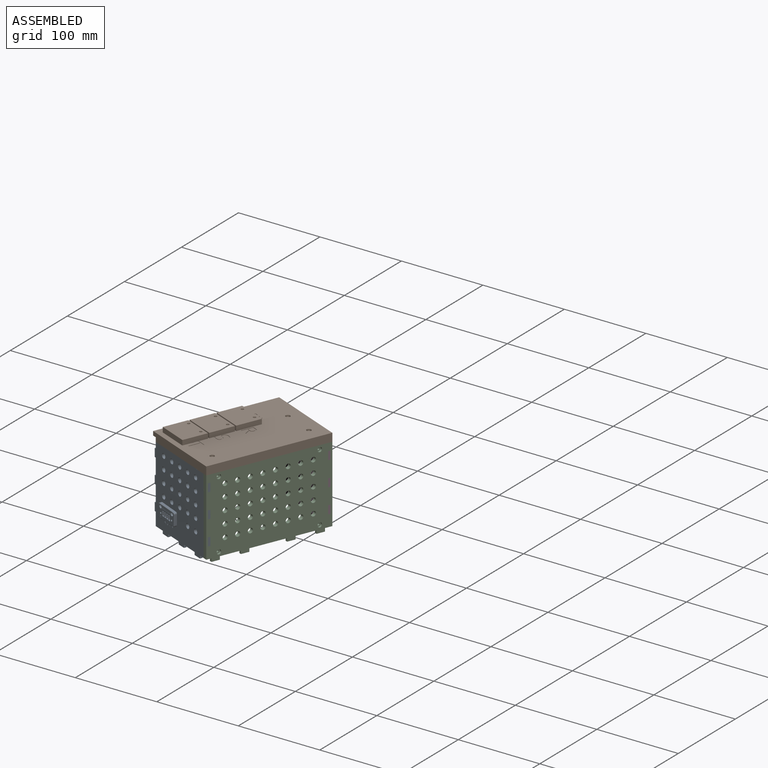
[diagram: assembled view]
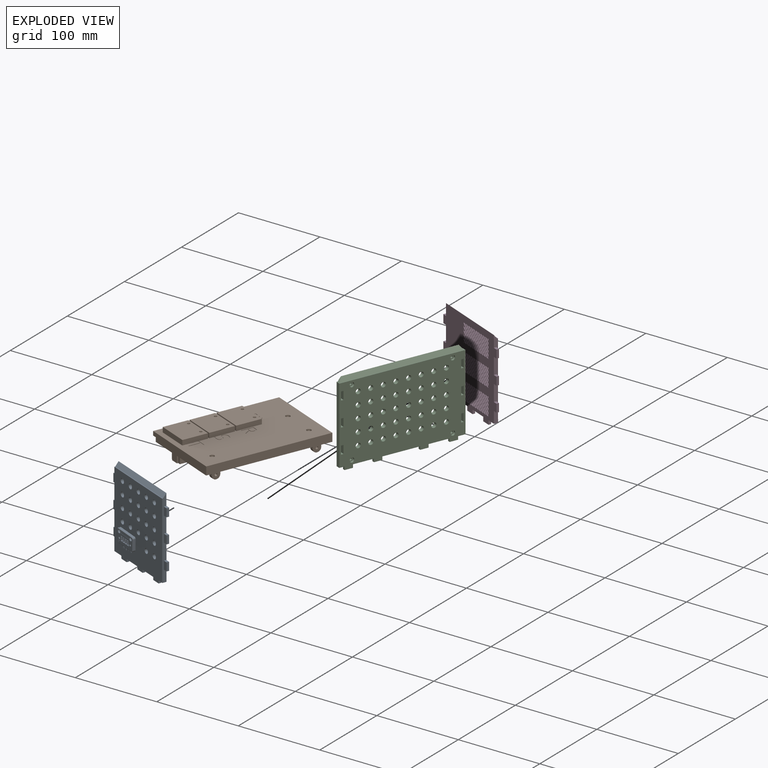
[diagram: exploded view]
GUIDED TOUR — MATED ASSEMBLY WITH SUBASSEMBLIES (Onshape document c2169f54061de33ea93a90dd, AutoMate assembly c2169f54061de33ea93a90dd_6a7d9849bef87e64bdcc8d37_483be681c56e90cc76125730_default)

This assembly has 8 component occurrences arranged in 4 top-level units: 2 individual components plus 2 subassemblies (S0, S1). The tour has two levels: first the top level, where each subassembly is treated as one rigid unit; then each subassembly is toured internally in its own section (nesting deeper than one subassembly level is flattened into its subassembly's section).

Components are labeled P0..P7 across the whole record; subassembly units are labeled S0..S1. A mate is a constraint between two units; its type names the relative motion it leaves free:
  PLANAR — leaves sliding in the plane through the listed point (normal = the listed direction) and rotation about that normal free.
Axis/direction vectors are unit vectors and 'through' points are millimeter coordinates, both in the assembly's world frame.

TOP-LEVEL MATES (between units; each subassembly's internal mates are listed in its own section)
  1. PLANAR "Planar 3": S0 <-> S1, direction (-0.302, -0.720, 0.625) through (-228.48, -171.13, 92.83) mm
  2. PLANAR "Planar 2": P4 <-> S1, direction (0.301, 0.720, 0.625) through (-172.90, -38.29, 92.87) mm
  3. PLANAR "Planar 1": P3 <-> S1, direction (0.720, -0.301, 0.625) through (-117.67, -139.45, 95.41) mm

TOP-LEVEL ASSEMBLY ORDER
  1. S1 — the base component [order verified]
  2. S0 [order verified]
  3. P3 [order verified]
  4. P4 [order verified]
(P3, P4 verified with a relaxed clearance tolerance: the source model stores slight part interference there.)
Order-tag legend:
  [order verified] — this step's position reverses a verified removal order: the component was checked to insert without passing through the ones already placed.

Of the 8 component occurrences, 5 carry the full construction recipe — the FeatureScript program that regenerates the part's solid from scratch; the rest are supplied as boundary geometry only. Each toured unit is shown spotlighted twice — assembled, then exploded with a leader line back to its socket (green = recipe-attached component, orange = geometry-only, blue = subassembly unit; the rest desaturated gray).
NOTE — document 2 of 2 of this assembly tour. The two overview renders and the header above are repeated from document 1; the component sections below continue where the previous document stopped.
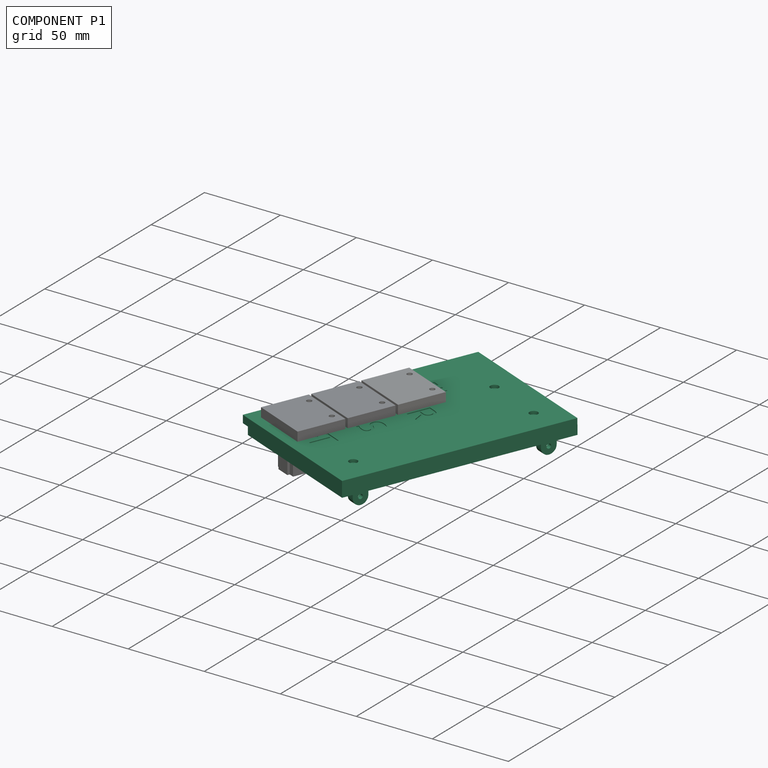
[diagram: component P1 — assembled]
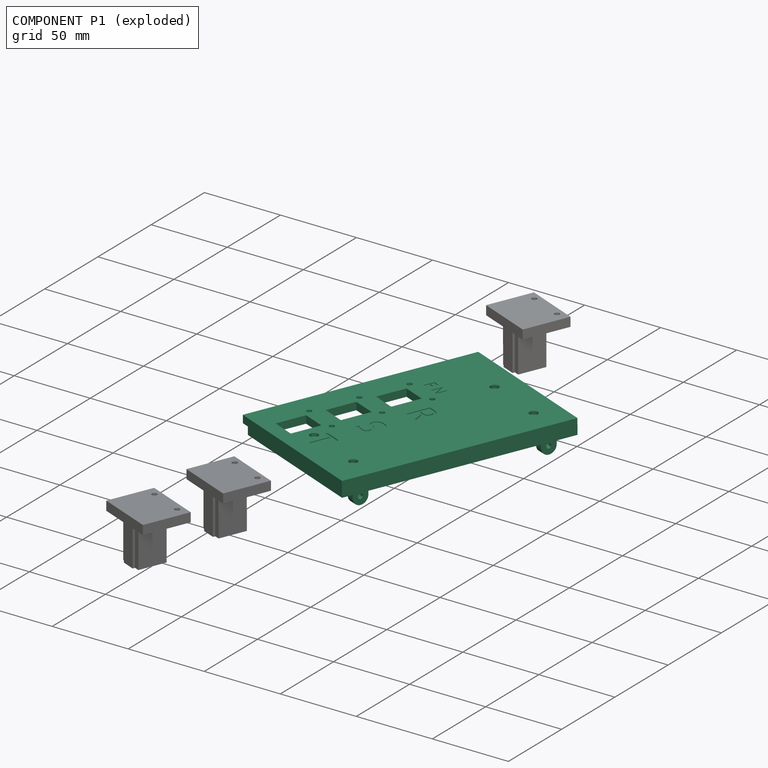
[diagram: component P1 — exploded]
COMPONENT P1 — recipe-attached (CADFS 00138853, mesh-verified: the recipe's output STEP matches this component's geometry to below the mesh-comparison resolution (tessellation chordal tolerance ~0.272 mm)).
Held by: PLANAR mate "Planar 3" to P6; PLANAR mate "Planar 2" to P2; PLANAR mate "Planar 1" to P7.
Construction recipe (FeatureScript — the CAD program that rebuilds this solid; sketch coordinates are in the units given by the * unit suffixes, e.g. mm):

FeatureScript 1511;
import(path : "onshape/std/geometry.fs", version : "1511.0");
import(path : "onshape/std/common.fs", version : "1511.0");
const mm = millimeter;
const VERTEX = EntityType.VERTEX;
const EDGE = EntityType.EDGE;
const FACE = EntityType.FACE;
const BODY = EntityType.BODY;
function v(x, y){return vector(x, y);}
function OD(order){return orderDisambiguation(order);}
function OSD(set){return originalSetDisambiguation(set);}
function TD(topology){return topologyDisambiguation(topology);}
function TDD(query){return trueDependencyDisambiguation(query);}
function sQuery(a, b, c) {return sketchEntityQuery(a, b, c);}

annotation { "Feature Type Name" : "Feature", "Feature Type Description" : "" }
export const myFeature = defineFeature(function(context is Context, id is Id, definition is map)
    precondition{}
    {
        {
            var Q0;
            Q0=qCreatedBy(makeId("Top.planeOp"),FACE);
            var sketch = newSketch(context, id + "F0", { "sketchPlane" : qUnion([Q0])});
            skLineSegment(sketch, "E0.bottom", {"start": v(50, 75) * mm, "end": v(-50, 75) * mm});
            skLineSegment(sketch, "E0.top", {"start": v(50, -75) * mm, "end": v(-50, -75) * mm});
            skLineSegment(sketch, "E0.left", {"start": v(50, 75) * mm, "end": v(50, -75) * mm});
            skLineSegment(sketch, "E0.right", {"start": v(-50, 75) * mm, "end": v(-50, -75) * mm});
            skPoint(sketch, "E0.middle", {"position": v(0, 0) * mm});
            skSolve(sketch);
        }
        {
            var Q0;
            Q0 = qSketchRegion(id + "F0", true);
            extrude(context, id + "F1", {"entities" : qUnion([Q0]), "depth" : 5 * mm});
        }
        {
            var Q0;
            Q0=makeQuery(id+"F1.opExtrude","CAP_FACE",FACE,{"disambiguationData":[OSD([sQuery(id+"F0.wireOp",EDGE,"E0.bottom"),sQuery(id+"F0.wireOp",EDGE,"E0.top"),sQuery(id+"F0.wireOp",EDGE,"E0.left"),sQuery(id+"F0.wireOp",EDGE,"E0.right")])],"isStart":false});
            var sketch = newSketch(context, id + "F2", { "sketchPlane" : qUnion([Q0])});
            skLineSegment(sketch, "E1.bottom", {"start": v(-50, 75) * mm, "end": v(50, 75) * mm});
            skLineSegment(sketch, "E1.top", {"start": v(-50, -75) * mm, "end": v(50, -75) * mm});
            skLineSegment(sketch, "E1.left", {"start": v(-50, 75) * mm, "end": v(-50, -75) * mm});
            skLineSegment(sketch, "E1.right", {"start": v(50, 75) * mm, "end": v(50, -75) * mm});
            skLineSegment(sketch, "E2.bottom", {"start": v(-45, 70) * mm, "end": v(45, 70) * mm});
            skLineSegment(sketch, "E2.top", {"start": v(-45, -70) * mm, "end": v(45, -70) * mm});
            skLineSegment(sketch, "E2.left", {"start": v(-45, 70) * mm, "end": v(-45, -70) * mm});
            skLineSegment(sketch, "E2.right", {"start": v(45, 70) * mm, "end": v(45, -70) * mm});
            skLineSegment(sketch, "E3", {"start": v(45, 70) * mm, "end": v(45, 75) * mm});
            skLineSegment(sketch, "E4", {"start": v(45, -70) * mm, "end": v(45, -75) * mm});
            skSolve(sketch);
        }
        {
            var Q0;
            Q0=makeQuery(id+"FjEDbnMBrPMrPUJ_1.boolean.opBoolean","MERGE",FACE,{"derivedFrom":[makeQuery(id+"F1.opExtrude","SWEPT_FACE",FACE,{"disambiguationData":[OSD([sQuery(id+"F0.wireOp",EDGE,"E0.top")])]}),makeQuery(id+"FjEDbnMBrPMrPUJ_1.opExtrude","SWEPT_FACE",FACE,{"disambiguationData":[OSD([sQuery(id+"F2.wireOp",EDGE,"E1.top")])]})]});
            var sketch = newSketch(context, id + "F3", { "sketchPlane" : qUnion([Q0])});
            skLineSegment(sketch, "E5", {"start": v(-50, 0) * mm, "end": v(-50, 10) * mm});
            skLineSegment(sketch, "E6", {"start": v(-50, 10) * mm, "end": v(-49, 10) * mm});
            skLineSegment(sketch, "E7", {"start": v(-50, 5) * mm, "end": v(-45, 5) * mm});
            skLineSegment(sketch, "E8", {"start": v(-49, 10) * mm, "end": v(-45, 5) * mm});
            skSolve(sketch);
        }
        {
            var Q0;
            Q0=makeQuery(id+"F1.opExtrude","SWEPT_FACE",FACE,{"disambiguationData":[OSD([sQuery(id+"F0.wireOp",EDGE,"E0.left")])]});
            var sketch = newSketch(context, id + "F4", { "sketchPlane" : qUnion([Q0])});
            skLineSegment(sketch, "E9", {"start": v(-75, 0) * mm, "end": v(-75, 10) * mm});
            skLineSegment(sketch, "E10", {"start": v(-75, 5) * mm, "end": v(-70, 5) * mm});
            skLineSegment(sketch, "E11", {"start": v(-75, 10) * mm, "end": v(-74, 10) * mm});
            skLineSegment(sketch, "E12", {"start": v(-74, 10) * mm, "end": v(-70, 5) * mm});
            skLineSegment(sketch, "E13.MirrorCS", {"start": v(75, 10) * mm, "end": v(74, 10) * mm});
            skLineSegment(sketch, "E14.MirrorCS", {"start": v(75, 0) * mm, "end": v(75, 10) * mm});
            skLineSegment(sketch, "E15.MirrorCS", {"start": v(75, 5) * mm, "end": v(70, 5) * mm});
            skLineSegment(sketch, "E16.MirrorCS", {"start": v(74, 10) * mm, "end": v(70, 5) * mm});
            skSolve(sketch);
        }
        {
            var Q0;
            Q0 = qSketchRegion(id + "F3", true);
            extrude(context, id + "F5", {"entities" : qUnion([Q0]), "operationType" : NewBodyOperationType.ADD, "oppositeDirection" : true, "depth" : 150 * mm});
        }
        {
            var Q0;
            Q0 = qSketchRegion(id + "F4", true);
            extrude(context, id + "F6", {"entities" : qUnion([Q0]), "operationType" : NewBodyOperationType.ADD, "oppositeDirection" : true, "depth" : 100 * mm});
        }
        {
            var Q0;
            Q0=makeQuery(id+"F6.boolean.opBoolean","MERGE",FACE,{"derivedFrom":[makeQuery(id+"F5.boolean.opBoolean","MERGE",FACE,{"derivedFrom":[makeQuery(id+"F1.opExtrude","SWEPT_FACE",FACE,{"disambiguationData":[OSD([sQuery(id+"F0.wireOp",EDGE,"E0.top")])]}),makeQuery(id+"F5.opExtrude","CAP_FACE",FACE,{"disambiguationData":[OSD([sQuery(id+"F3.wireOp",EDGE,"E5"),sQuery(id+"F3.wireOp",EDGE,"E6"),sQuery(id+"F3.wireOp",EDGE,"E7"),sQuery(id+"F3.wireOp",EDGE,"E8")])],"isStart":true})]}),makeQuery(id+"F6.opExtrude","SWEPT_FACE",FACE,{"disambiguationData":[OSD([sQuery(id+"F4.wireOp",EDGE,"E9")])]})]});
            var sketch = newSketch(context, id + "F7", { "sketchPlane" : qUnion([Q0])});
            skLineSegment(sketch, "E17.bottom", {"start": v(50, 10) * mm, "end": v(45, 10) * mm});
            skLineSegment(sketch, "E17.top", {"start": v(50, 5) * mm, "end": v(45, 5) * mm});
            skLineSegment(sketch, "E17.left", {"start": v(50, 10) * mm, "end": v(50, 5) * mm});
            skLineSegment(sketch, "E17.right", {"start": v(45, 10) * mm, "end": v(45, 5) * mm});
            skSolve(sketch);
        }
        {
            var Q0;
            Q0 = qSketchRegion(id + "F7", true);
            extrude(context, id + "F8", {"entities" : qUnion([Q0]), "operationType" : NewBodyOperationType.REMOVE, "oppositeDirection" : true, "depth" : 160 * mm});
        }
        {
            var Q0;
            Q0=makeQuery(id+"F8.boolean.opBoolean","MERGE",FACE,{"derivedFrom":[makeQuery(id+"F1.opExtrude","CAP_FACE",FACE,{"disambiguationData":[OSD([sQuery(id+"F0.wireOp",EDGE,"E0.bottom"),sQuery(id+"F0.wireOp",EDGE,"E0.top"),sQuery(id+"F0.wireOp",EDGE,"E0.left"),sQuery(id+"F0.wireOp",EDGE,"E0.right")])],"isStart":false}),makeQuery(id+"F8.opExtrude","SWEPT_FACE",FACE,{"disambiguationData":[OSD([sQuery(id+"F7.wireOp",EDGE,"E17.top")])]})]});
            var sketch = newSketch(context, id + "F9", { "sketchPlane" : qUnion([Q0])});
            skLineSegment(sketch, "E18.bottom", {"start": v(15.92, 17.45) * mm, "end": v(31.22, 17.45) * mm});
            skLineSegment(sketch, "E18.top", {"start": v(15.92, -2.05) * mm, "end": v(31.22, -2.05) * mm});
            skLineSegment(sketch, "E18.left", {"start": v(15.92, 17.45) * mm, "end": v(15.92, -2.05) * mm});
            skLineSegment(sketch, "E18.right", {"start": v(31.22, 17.45) * mm, "end": v(31.22, -2.05) * mm});
            skLineSegment(sketch, "E19.bottom", {"start": v(5.14, 26) * mm, "end": v(42, 26) * mm});
            skLineSegment(sketch, "E19.left", {"start": v(5.14, 26) * mm, "end": v(5.14, -4.5) * mm});
            skLineSegment(sketch, "E19.right", {"start": v(42, 26) * mm, "end": v(42, -4.5) * mm});
            skCircle(sketch, "E20", {"center": v(12.14, 21.8) * mm, "radius": 1.7 * mm});
            skCircle(sketch, "E21", {"center": v(35, 21.8) * mm, "radius": 1.7 * mm});
            skLineSegment(sketch, "E22", {"start": v(5.14, -4.5) * mm, "end": v(42, -4.5) * mm});
            skLineSegment(sketch, "E23.0.1.0", {"start": v(5.14, -6) * mm, "end": v(42, -6) * mm});
            skLineSegment(sketch, "E23.0.1.1", {"start": v(15.92, -14.55) * mm, "end": v(31.22, -14.55) * mm});
            skLineSegment(sketch, "E23.0.1.2", {"start": v(5.14, -36.5) * mm, "end": v(42, -36.5) * mm});
            skLineSegment(sketch, "E23.0.1.3", {"start": v(31.22, -14.55) * mm, "end": v(31.22, -34.05) * mm});
            skLineSegment(sketch, "E23.0.1.4", {"start": v(42, -6) * mm, "end": v(42, -36.5) * mm});
            skLineSegment(sketch, "E23.0.1.5", {"start": v(15.92, -14.55) * mm, "end": v(15.92, -34.05) * mm});
            skLineSegment(sketch, "E23.0.1.6", {"start": v(5.14, -6) * mm, "end": v(5.14, -36.5) * mm});
            skLineSegment(sketch, "E23.0.1.7", {"start": v(15.92, -34.05) * mm, "end": v(31.22, -34.05) * mm});
            skCircle(sketch, "E23.0.1.8", {"center": v(35, -10.2) * mm, "radius": 1.7 * mm});
            skCircle(sketch, "E23.0.1.9", {"center": v(12.14, -10.2) * mm, "radius": 1.7 * mm});
            skLineSegment(sketch, "E23.0.2.0", {"start": v(5.14, -38) * mm, "end": v(42, -38) * mm});
            skLineSegment(sketch, "E23.0.2.1", {"start": v(15.92, -46.55) * mm, "end": v(31.22, -46.55) * mm});
            skLineSegment(sketch, "E23.0.2.2", {"start": v(5.14, -68.5) * mm, "end": v(42, -68.5) * mm});
            skLineSegment(sketch, "E23.0.2.3", {"start": v(31.22, -46.55) * mm, "end": v(31.22, -66.05) * mm});
            skLineSegment(sketch, "E23.0.2.4", {"start": v(42, -38) * mm, "end": v(42, -68.5) * mm});
            skLineSegment(sketch, "E23.0.2.5", {"start": v(15.92, -46.55) * mm, "end": v(15.92, -66.05) * mm});
            skLineSegment(sketch, "E23.0.2.6", {"start": v(5.14, -38) * mm, "end": v(5.14, -68.5) * mm});
            skLineSegment(sketch, "E23.0.2.7", {"start": v(15.92, -66.05) * mm, "end": v(31.22, -66.05) * mm});
            skCircle(sketch, "E23.0.2.8", {"center": v(35, -42.2) * mm, "radius": 1.7 * mm});
            skCircle(sketch, "E23.0.2.9", {"center": v(12.14, -42.2) * mm, "radius": 1.7 * mm});
            skLineSegment(sketch, "E23.direction1", {"start": v(5.14, -4.5) * mm, "end": v(42, -4.5) * mm, "construction": true});
            skLineSegment(sketch, "E23.direction2", {"start": v(5.14, -4.5) * mm, "end": v(5.14, -36.5) * mm, "construction": true});
            skSolve(sketch);
        }
        {
            var Q0;
            Q0=makeQuery(id+"F1.opExtrude","CAP_FACE",FACE,{"disambiguationData":[OSD([sQuery(id+"F0.wireOp",EDGE,"E0.bottom"),sQuery(id+"F0.wireOp",EDGE,"E0.top"),sQuery(id+"F0.wireOp",EDGE,"E0.left"),sQuery(id+"F0.wireOp",EDGE,"E0.right")])],"isStart":true});
            var sketch = newSketch(context, id + "F10", { "sketchPlane" : qUnion([Q0])});
            skCircle(sketch, "E24", {"center": v(7.5, 56.5) * mm, "radius": 1.5 * mm});
            skCircle(sketch, "E25", {"center": v(-32, -58.5) * mm, "radius": 1.5 * mm});
            skCircle(sketch, "E26", {"center": v(7.5, -58.5) * mm, "radius": 1.5 * mm});
            skCircle(sketch, "E27", {"center": v(-32, 56.5) * mm, "radius": 1.5 * mm});
            skSolve(sketch);
        }
        {
            var Q0;
            Q0 = qSketchRegion(id + "F10", true);
            extrude(context, id + "F11", {"entities" : qUnion([Q0]), "operationType" : NewBodyOperationType.REMOVE, "oppositeDirection" : true, "depth" : 25 * mm});
        }
        {
            var Q0;
            Q0=makeQuery(id+"F1.opExtrude","CAP_FACE",FACE,{"disambiguationData":[OSD([sQuery(id+"F0.wireOp",EDGE,"E0.bottom"),sQuery(id+"F0.wireOp",EDGE,"E0.top"),sQuery(id+"F0.wireOp",EDGE,"E0.left"),sQuery(id+"F0.wireOp",EDGE,"E0.right")])],"isStart":true});
            var sketch = newSketch(context, id + "F12", { "sketchPlane" : qUnion([Q0])});
            skCircle(sketch, "E28", {"center": v(-32, 56.5) * mm, "radius": 2.75 * mm});
            skCircle(sketch, "E29", {"center": v(7.5, 56.5) * mm, "radius": 2.75 * mm});
            skCircle(sketch, "E30", {"center": v(-32, -58.5) * mm, "radius": 2.75 * mm});
            skCircle(sketch, "E31", {"center": v(7.5, -58.5) * mm, "radius": 2.75 * mm});
            skSolve(sketch);
        }
        {
            var Q0;
            Q0 = qSketchRegion(id + "F12", true);
            extrude(context, id + "F13", {"entities" : qUnion([Q0]), "operationType" : NewBodyOperationType.REMOVE, "oppositeDirection" : true, "depth" : 2 * mm});
        }
        {
            var Q0;
            Q0=makeQuery(id+"F8.boolean.opBoolean","MERGE",FACE,{"derivedFrom":[makeQuery(id+"F1.opExtrude","CAP_FACE",FACE,{"disambiguationData":[OSD([sQuery(id+"F0.wireOp",EDGE,"E0.bottom"),sQuery(id+"F0.wireOp",EDGE,"E0.top"),sQuery(id+"F0.wireOp",EDGE,"E0.left"),sQuery(id+"F0.wireOp",EDGE,"E0.right")])],"isStart":false}),makeQuery(id+"F8.opExtrude","SWEPT_FACE",FACE,{"disambiguationData":[OSD([sQuery(id+"F7.wireOp",EDGE,"E17.top")])]})]});
            var sketch = newSketch(context, id + "F14", { "sketchPlane" : qUnion([Q0])});
            skLineSegment(sketch, "E32.bottom", {"start": v(-39.9, 65) * mm, "end": v(-44.9, 65) * mm});
            skLineSegment(sketch, "E32.top", {"start": v(-39.9, 55) * mm, "end": v(-44.9, 55) * mm});
            skLineSegment(sketch, "E32.left", {"start": v(-39.9, 65) * mm, "end": v(-39.9, 55) * mm});
            skLineSegment(sketch, "E32.right", {"start": v(-44.9, 65) * mm, "end": v(-44.9, 55) * mm});
            skLineSegment(sketch, "E33.bottom", {"start": v(44.9, 65) * mm, "end": v(39.9, 65) * mm});
            skLineSegment(sketch, "E33.top", {"start": v(44.9, 55) * mm, "end": v(39.9, 55) * mm});
            skLineSegment(sketch, "E33.left", {"start": v(44.9, 65) * mm, "end": v(44.9, 55) * mm});
            skLineSegment(sketch, "E33.right", {"start": v(39.9, 65) * mm, "end": v(39.9, 55) * mm});
            skLineSegment(sketch, "E34.bottom", {"start": v(-39.9, -55) * mm, "end": v(-44.9, -55) * mm});
            skLineSegment(sketch, "E34.top", {"start": v(-39.9, -65) * mm, "end": v(-44.9, -65) * mm});
            skLineSegment(sketch, "E34.left", {"start": v(-39.9, -55) * mm, "end": v(-39.9, -65) * mm});
            skLineSegment(sketch, "E34.right", {"start": v(-44.9, -55) * mm, "end": v(-44.9, -65) * mm});
            skLineSegment(sketch, "E35.bottom", {"start": v(45, -55) * mm, "end": v(40, -55) * mm});
            skLineSegment(sketch, "E35.top", {"start": v(45, -65) * mm, "end": v(40, -65) * mm});
            skLineSegment(sketch, "E35.left", {"start": v(45, -55) * mm, "end": v(45, -65) * mm});
            skLineSegment(sketch, "E35.right", {"start": v(40, -55) * mm, "end": v(40, -65) * mm});
            skSolve(sketch);
        }
        {
            var Q0;
            Q0 = qSketchRegion(id + "F14", true);
            extrude(context, id + "F15", {"entities" : qUnion([Q0]), "operationType" : NewBodyOperationType.ADD, "depth" : 20 * mm});
        }
        {
            var Q0;
            Q0=makeQuery(id+"F15.opExtrude","SWEPT_FACE",FACE,{"disambiguationData":[OSD([sQuery(id+"F14.wireOp",EDGE,"E35.left")])]});
            var sketch = newSketch(context, id + "F16", { "sketchPlane" : qUnion([Q0])});
            skCircle(sketch, "E36", {"center": v(-60, 10) * mm, "radius": 1.5 * mm});
            skLineSegment(sketch, "E37", {"start": v(-65, 10) * mm, "end": v(-65, 25) * mm});
            skLineSegment(sketch, "E38", {"start": v(-65, 25) * mm, "end": v(-55, 25) * mm});
            skLineSegment(sketch, "E39", {"start": v(-55, 25) * mm, "end": v(-55, 10) * mm});
            skArc(sketch, "E40", {"start": v(-55, 10) * mm, "mid": v(-60, 15) * mm, "end": v(-65, 10) * mm});
            skCircle(sketch, "E41.MirrorC", {"center": v(60, 10) * mm, "radius": 1.5 * mm});
            skLineSegment(sketch, "E42.MirrorCS", {"start": v(55, 25) * mm, "end": v(55, 10) * mm});
            skLineSegment(sketch, "E43.MirrorCS", {"start": v(65, 10) * mm, "end": v(65, 25) * mm});
            skArc(sketch, "E44.MirrorCS", {"start": v(55, 10) * mm, "mid": v(60, 15) * mm, "end": v(65, 10) * mm});
            skLineSegment(sketch, "E45.MirrorCS", {"start": v(65, 25) * mm, "end": v(55, 25) * mm});
            skSolve(sketch);
        }
        {
            var Q0;
            Q0 = qSketchRegion(id + "F16", true);
            extrude(context, id + "F17", {"entities" : qUnion([Q0]), "operationType" : NewBodyOperationType.REMOVE, "oppositeDirection" : true, "depth" : 10 * mm});
        }
        {
            var Q0;
            Q0=makeQuery(id+"F15.opExtrude","SWEPT_FACE",FACE,{"disambiguationData":[OSD([sQuery(id+"F14.wireOp",EDGE,"E34.left")])]});
            var sketch = newSketch(context, id + "F18", { "sketchPlane" : qUnion([Q0])});
            skCircle(sketch, "E46", {"center": v(-60, 15) * mm, "radius": 1.5 * mm});
            skArc(sketch, "E47", {"start": v(-55, 15) * mm, "mid": v(-60, 20) * mm, "end": v(-65, 15) * mm});
            skLineSegment(sketch, "E48", {"start": v(-55, 15) * mm, "end": v(-55, 25) * mm});
            skLineSegment(sketch, "E49", {"start": v(-55, 25) * mm, "end": v(-65, 25) * mm});
            skLineSegment(sketch, "E50", {"start": v(-65, 25) * mm, "end": v(-65, 15) * mm});
            skLineSegment(sketch, "E51.MirrorCS", {"start": v(55, 15) * mm, "end": v(55, 25) * mm});
            skLineSegment(sketch, "E52.MirrorCS", {"start": v(55, 25) * mm, "end": v(65, 25) * mm});
            skArc(sketch, "E53.MirrorCS", {"start": v(55, 15) * mm, "mid": v(60, 20) * mm, "end": v(65, 15) * mm});
            skLineSegment(sketch, "E54.MirrorCS", {"start": v(65, 25) * mm, "end": v(65, 15) * mm});
            skCircle(sketch, "E55.MirrorC", {"center": v(60, 15) * mm, "radius": 1.5 * mm});
            skSolve(sketch);
        }
        {
            var Q0;
            Q0 = qSketchRegion(id + "F18", true);
            extrude(context, id + "F19", {"entities" : qUnion([Q0]), "operationType" : NewBodyOperationType.REMOVE, "oppositeDirection" : true, "depth" : 25 * mm});
        }
        {
            var Q0;
            Q0=makeQuery(id+"F15.opExtrude","SWEPT_FACE",FACE,{"disambiguationData":[OSD([sQuery(id+"F14.wireOp",EDGE,"E35.right")])]});
            var sketch = newSketch(context, id + "F20", { "sketchPlane" : qUnion([Q0])});
            skCircle(sketch, "E56.cCircle", {"center": v(60, 10) * mm, "radius": 2.75 * mm, "construction": true});
            skLineSegment(sketch, "E56.0", {"start": v(58.41, 12.75) * mm, "end": v(61.59, 12.75) * mm});
            skLineSegment(sketch, "E56.1", {"start": v(61.59, 12.75) * mm, "end": v(63.18, 10) * mm});
            skLineSegment(sketch, "E56.2", {"start": v(63.18, 10) * mm, "end": v(61.59, 7.25) * mm});
            skLineSegment(sketch, "E56.3", {"start": v(61.59, 7.25) * mm, "end": v(58.41, 7.25) * mm});
            skLineSegment(sketch, "E56.4", {"start": v(58.41, 7.25) * mm, "end": v(56.82, 10) * mm});
            skLineSegment(sketch, "E56.5", {"start": v(56.82, 10) * mm, "end": v(58.41, 12.75) * mm});
            skPoint(sketch, "E56.0.midPoint", {"position": v(60, 12.75) * mm});
            skLineSegment(sketch, "E57.MirrorCS", {"start": v(-56.82, 10) * mm, "end": v(-58.41, 12.75) * mm});
            skLineSegment(sketch, "E58.MirrorCS", {"start": v(-58.41, 7.25) * mm, "end": v(-56.82, 10) * mm});
            skLineSegment(sketch, "E59.MirrorCS", {"start": v(-61.59, 7.25) * mm, "end": v(-58.41, 7.25) * mm});
            skLineSegment(sketch, "E60.MirrorCS", {"start": v(-63.18, 10) * mm, "end": v(-61.59, 7.25) * mm});
            skLineSegment(sketch, "E61.MirrorCS", {"start": v(-61.59, 12.75) * mm, "end": v(-63.18, 10) * mm});
            skLineSegment(sketch, "E62.MirrorCS", {"start": v(-58.41, 12.75) * mm, "end": v(-61.59, 12.75) * mm});
            skCircle(sketch, "E63.MirrorC", {"center": v(-60, 10) * mm, "radius": 2.75 * mm, "construction": true});
            skPoint(sketch, "E64.MirrorP", {"position": v(-60, 12.75) * mm});
            skSolve(sketch);
        }
        {
            var Q0;
            Q0 = qSketchRegion(id + "F20", true);
            extrude(context, id + "F21", {"entities" : qUnion([Q0]), "operationType" : NewBodyOperationType.REMOVE, "oppositeDirection" : true, "depth" : 2.5 * mm});
        }
        {
            var Q0;
            Q0=makeQuery(id+"F15.opExtrude","SWEPT_FACE",FACE,{"disambiguationData":[OSD([sQuery(id+"F14.wireOp",EDGE,"E34.left")])]});
            var sketch = newSketch(context, id + "F22", { "sketchPlane" : qUnion([Q0])});
            skCircle(sketch, "E65.cCircle", {"center": v(-60, 15) * mm, "radius": 2.75 * mm, "construction": true});
            skLineSegment(sketch, "E65.0", {"start": v(-61.59, 17.75) * mm, "end": v(-58.41, 17.75) * mm});
            skLineSegment(sketch, "E65.1", {"start": v(-58.41, 17.75) * mm, "end": v(-56.82, 15) * mm});
            skLineSegment(sketch, "E65.2", {"start": v(-56.82, 15) * mm, "end": v(-58.41, 12.25) * mm});
            skLineSegment(sketch, "E65.3", {"start": v(-58.41, 12.25) * mm, "end": v(-61.59, 12.25) * mm});
            skLineSegment(sketch, "E65.4", {"start": v(-61.59, 12.25) * mm, "end": v(-63.18, 15) * mm});
            skLineSegment(sketch, "E65.5", {"start": v(-63.18, 15) * mm, "end": v(-61.59, 17.75) * mm});
            skPoint(sketch, "E65.0.midPoint", {"position": v(-60, 17.75) * mm});
            skLineSegment(sketch, "E66.MirrorCS", {"start": v(63.18, 15) * mm, "end": v(61.59, 17.75) * mm});
            skLineSegment(sketch, "E67.MirrorCS", {"start": v(58.41, 12.25) * mm, "end": v(61.59, 12.25) * mm});
            skLineSegment(sketch, "E68.MirrorCS", {"start": v(61.59, 17.75) * mm, "end": v(58.41, 17.75) * mm});
            skLineSegment(sketch, "E69.MirrorCS", {"start": v(61.59, 12.25) * mm, "end": v(63.18, 15) * mm});
            skLineSegment(sketch, "E70.MirrorCS", {"start": v(56.82, 15) * mm, "end": v(58.41, 12.25) * mm});
            skLineSegment(sketch, "E71.MirrorCS", {"start": v(58.41, 17.75) * mm, "end": v(56.82, 15) * mm});
            skCircle(sketch, "E72.MirrorC", {"center": v(60, 15) * mm, "radius": 2.75 * mm, "construction": true});
            skPoint(sketch, "E73.MirrorP", {"position": v(60, 17.75) * mm});
            skSolve(sketch);
        }
        {
            var Q0;
            Q0 = qSketchRegion(id + "F22", true);
            extrude(context, id + "F23", {"entities" : qUnion([Q0]), "operationType" : NewBodyOperationType.REMOVE, "oppositeDirection" : true, "depth" : 2.5 * mm});
        }
        {
            var Q0;
            Q0=makeQuery(id+"F8.boolean.opBoolean","MERGE",FACE,{"derivedFrom":[makeQuery(id+"F1.opExtrude","CAP_FACE",FACE,{"disambiguationData":[OSD([sQuery(id+"F0.wireOp",EDGE,"E0.bottom"),sQuery(id+"F0.wireOp",EDGE,"E0.top"),sQuery(id+"F0.wireOp",EDGE,"E0.left"),sQuery(id+"F0.wireOp",EDGE,"E0.right")])],"isStart":false}),makeQuery(id+"F8.opExtrude","SWEPT_FACE",FACE,{"disambiguationData":[OSD([sQuery(id+"F7.wireOp",EDGE,"E17.top")])]})]});
            var sketch = newSketch(context, id + "F24", { "sketchPlane" : qUnion([Q0])});
            skCircle(sketch, "E74.cCircle", {"center": v(12.14, 21.8) * mm, "radius": 2.75 * mm, "construction": true});
            skLineSegment(sketch, "E74.0", {"start": v(10.55, 24.55) * mm, "end": v(13.73, 24.55) * mm});
            skLineSegment(sketch, "E74.1", {"start": v(13.73, 24.55) * mm, "end": v(15.32, 21.8) * mm});
            skLineSegment(sketch, "E74.2", {"start": v(15.32, 21.8) * mm, "end": v(13.73, 19.05) * mm});
            skLineSegment(sketch, "E74.3", {"start": v(13.73, 19.05) * mm, "end": v(10.55, 19.05) * mm});
            skLineSegment(sketch, "E74.4", {"start": v(10.55, 19.05) * mm, "end": v(8.96, 21.8) * mm});
            skLineSegment(sketch, "E74.5", {"start": v(8.96, 21.8) * mm, "end": v(10.55, 24.55) * mm});
            skPoint(sketch, "E74.0.midPoint", {"position": v(12.14, 24.55) * mm});
            skPoint(sketch, "E75.0.1.0", {"position": v(12.14, -7.45) * mm});
            skLineSegment(sketch, "E75.0.1.1", {"start": v(13.73, -7.45) * mm, "end": v(15.32, -10.2) * mm});
            skLineSegment(sketch, "E75.0.1.2", {"start": v(15.32, -10.2) * mm, "end": v(13.73, -12.95) * mm});
            skCircle(sketch, "E75.0.1.3", {"center": v(12.14, -10.2) * mm, "radius": 2.75 * mm, "construction": true});
            skLineSegment(sketch, "E75.0.1.4", {"start": v(10.55, -7.45) * mm, "end": v(13.73, -7.45) * mm});
            skLineSegment(sketch, "E75.0.1.5", {"start": v(10.55, -12.95) * mm, "end": v(8.96, -10.2) * mm});
            skLineSegment(sketch, "E75.0.1.6", {"start": v(13.73, -12.95) * mm, "end": v(10.55, -12.95) * mm});
            skLineSegment(sketch, "E75.0.1.7", {"start": v(8.96, -10.2) * mm, "end": v(10.55, -7.45) * mm});
            skPoint(sketch, "E75.0.2.0", {"position": v(12.14, -39.45) * mm});
            skLineSegment(sketch, "E75.0.2.1", {"start": v(13.73, -39.45) * mm, "end": v(15.32, -42.2) * mm});
            skLineSegment(sketch, "E75.0.2.2", {"start": v(15.32, -42.2) * mm, "end": v(13.73, -44.95) * mm});
            skCircle(sketch, "E75.0.2.3", {"center": v(12.14, -42.2) * mm, "radius": 2.75 * mm, "construction": true});
            skLineSegment(sketch, "E75.0.2.4", {"start": v(10.55, -39.45) * mm, "end": v(13.73, -39.45) * mm});
            skLineSegment(sketch, "E75.0.2.5", {"start": v(10.55, -44.95) * mm, "end": v(8.96, -42.2) * mm});
            skLineSegment(sketch, "E75.0.2.6", {"start": v(13.73, -44.95) * mm, "end": v(10.55, -44.95) * mm});
            skLineSegment(sketch, "E75.0.2.7", {"start": v(8.96, -42.2) * mm, "end": v(10.55, -39.45) * mm});
            skPoint(sketch, "E75.1.0.0", {"position": v(35, 24.55) * mm});
            skLineSegment(sketch, "E75.1.0.1", {"start": v(36.59, 24.55) * mm, "end": v(38.18, 21.8) * mm});
            skLineSegment(sketch, "E75.1.0.2", {"start": v(38.18, 21.8) * mm, "end": v(36.59, 19.05) * mm});
            skCircle(sketch, "E75.1.0.3", {"center": v(35, 21.8) * mm, "radius": 2.75 * mm, "construction": true});
            skLineSegment(sketch, "E75.1.0.4", {"start": v(33.41, 24.55) * mm, "end": v(36.59, 24.55) * mm});
            skLineSegment(sketch, "E75.1.0.5", {"start": v(33.41, 19.05) * mm, "end": v(31.82, 21.8) * mm});
            skLineSegment(sketch, "E75.1.0.6", {"start": v(36.59, 19.05) * mm, "end": v(33.41, 19.05) * mm});
            skLineSegment(sketch, "E75.1.0.7", {"start": v(31.82, 21.8) * mm, "end": v(33.41, 24.55) * mm});
            skPoint(sketch, "E75.1.1.0", {"position": v(35, -7.45) * mm});
            skLineSegment(sketch, "E75.1.1.1", {"start": v(36.59, -7.45) * mm, "end": v(38.18, -10.2) * mm});
            skLineSegment(sketch, "E75.1.1.2", {"start": v(38.18, -10.2) * mm, "end": v(36.59, -12.95) * mm});
            skCircle(sketch, "E75.1.1.3", {"center": v(35, -10.2) * mm, "radius": 2.75 * mm, "construction": true});
            skLineSegment(sketch, "E75.1.1.4", {"start": v(33.41, -7.45) * mm, "end": v(36.59, -7.45) * mm});
            skLineSegment(sketch, "E75.1.1.5", {"start": v(33.41, -12.95) * mm, "end": v(31.82, -10.2) * mm});
            skLineSegment(sketch, "E75.1.1.6", {"start": v(36.59, -12.95) * mm, "end": v(33.41, -12.95) * mm});
            skLineSegment(sketch, "E75.1.1.7", {"start": v(31.82, -10.2) * mm, "end": v(33.41, -7.45) * mm});
            skPoint(sketch, "E75.1.2.0", {"position": v(35, -39.45) * mm});
            skLineSegment(sketch, "E75.1.2.1", {"start": v(36.59, -39.45) * mm, "end": v(38.18, -42.2) * mm});
            skLineSegment(sketch, "E75.1.2.2", {"start": v(38.18, -42.2) * mm, "end": v(36.59, -44.95) * mm});
            skCircle(sketch, "E75.1.2.3", {"center": v(35, -42.2) * mm, "radius": 2.75 * mm, "construction": true});
            skLineSegment(sketch, "E75.1.2.4", {"start": v(33.41, -39.45) * mm, "end": v(36.59, -39.45) * mm});
            skLineSegment(sketch, "E75.1.2.5", {"start": v(33.41, -44.95) * mm, "end": v(31.82, -42.2) * mm});
            skLineSegment(sketch, "E75.1.2.6", {"start": v(36.59, -44.95) * mm, "end": v(33.41, -44.95) * mm});
            skLineSegment(sketch, "E75.1.2.7", {"start": v(31.82, -42.2) * mm, "end": v(33.41, -39.45) * mm});
            skLineSegment(sketch, "E75.direction1", {"start": v(10.55, 19.05) * mm, "end": v(33.41, 19.05) * mm, "construction": true});
            skLineSegment(sketch, "E75.direction2", {"start": v(10.55, 19.05) * mm, "end": v(10.55, -12.95) * mm, "construction": true});
            skSolve(sketch);
        }
        {
            var Q0;
            Q0 = qSketchRegion(id + "F24", true);
            extrude(context, id + "F25", {"entities" : qUnion([Q0]), "operationType" : NewBodyOperationType.REMOVE, "oppositeDirection" : true, "depth" : 2.5 * mm});
        }
        {
            var Q0;
            Q0=makeQuery(id+"F9.imprint","IMPRINT",FACE,{"disambiguationData":[TD([[makeQuery(id+"F9.imprint","IMPRINT",EDGE,{"derivedFrom":sQuery(id+"F9.wireOp",EDGE,"E21")}),1.0]])]});
            var Q1;
            Q1=makeQuery(id+"F9.imprint","IMPRINT",FACE,{"disambiguationData":[TD([[makeQuery(id+"F9.imprint","IMPRINT",EDGE,{"derivedFrom":sQuery(id+"F9.wireOp",EDGE,"E20")}),1.0]])]});
            var Q2;
            Q2=makeQuery(id+"F9.imprint","IMPRINT",FACE,{"disambiguationData":[TD([[makeQuery(id+"F9.imprint","IMPRINT",EDGE,{"derivedFrom":sQuery(id+"F9.wireOp",EDGE,"E18.bottom")}),-1.0]])]});
            var Q3;
            Q3=makeQuery(id+"F9.imprint","IMPRINT",FACE,{"disambiguationData":[TD([[makeQuery(id+"F9.imprint","IMPRINT",EDGE,{"derivedFrom":sQuery(id+"F9.wireOp",EDGE,"E23.0.1.8")}),1.0]])]});
            var Q4;
            Q4=makeQuery(id+"F9.imprint","IMPRINT",FACE,{"disambiguationData":[TD([[makeQuery(id+"F9.imprint","IMPRINT",EDGE,{"derivedFrom":sQuery(id+"F9.wireOp",EDGE,"E23.0.1.9")}),1.0]])]});
            var Q5;
            Q5=makeQuery(id+"F9.imprint","IMPRINT",FACE,{"disambiguationData":[TD([[makeQuery(id+"F9.imprint","IMPRINT",EDGE,{"derivedFrom":sQuery(id+"F9.wireOp",EDGE,"E23.0.1.1")}),-1.0]])]});
            var Q6;
            Q6=makeQuery(id+"F9.imprint","IMPRINT",FACE,{"disambiguationData":[TD([[makeQuery(id+"F9.imprint","IMPRINT",EDGE,{"derivedFrom":sQuery(id+"F9.wireOp",EDGE,"E23.0.2.8")}),1.0]])]});
            var Q7;
            Q7=makeQuery(id+"F9.imprint","IMPRINT",FACE,{"disambiguationData":[TD([[makeQuery(id+"F9.imprint","IMPRINT",EDGE,{"derivedFrom":sQuery(id+"F9.wireOp",EDGE,"E23.0.2.9")}),1.0]])]});
            var Q8;
            Q8=makeQuery(id+"F9.imprint","IMPRINT",FACE,{"disambiguationData":[TD([[makeQuery(id+"F9.imprint","IMPRINT",EDGE,{"derivedFrom":sQuery(id+"F9.wireOp",EDGE,"E23.0.2.1")}),-1.0]])]});
            extrude(context, id + "F26", {"entities" : qUnion([Q0, Q1, Q2, Q3, Q4, Q5, Q6, Q7, Q8]), "operationType" : NewBodyOperationType.REMOVE, "oppositeDirection" : true, "depth" : 25 * mm});
        }
        {
            var Q0;
            Q0=makeQuery(id+"F1.opExtrude","CAP_FACE",FACE,{"disambiguationData":[OSD([sQuery(id+"F0.wireOp",EDGE,"E0.bottom"),sQuery(id+"F0.wireOp",EDGE,"E0.top"),sQuery(id+"F0.wireOp",EDGE,"E0.left"),sQuery(id+"F0.wireOp",EDGE,"E0.right")])],"isStart":true});
            var sketch = newSketch(context, id + "F27", { "sketchPlane" : qUnion([Q0])});
            skText(sketch, "E76", { "text": "R", "fontName": "OpenSans-Regular.ttf"});
            skText(sketch, "E77", { "text": "S", "fontName": "OpenSans-Regular.ttf"});
            skText(sketch, "E78", { "text": "T", "fontName": "OpenSans-Regular.ttf"});
            skText(sketch, "E79", { "text": "F N", "fontName": "OpenSans-Regular.ttf"});
            const initialGuessF27  = {"E76": [0.00592, -0.0002, -1, 0, 0.015], "E77": [0.00592, 0.0318, -1, 0, 0.015], "E78": [0.00592, 0.0638, -1, 0, 0.015], "E79": [0.03086, -0.02745, -1, 0, 0.007]};
            skSetInitialGuess(sketch, initialGuessF27);
            skSolve(sketch);
        }
        {
            var Q0;
            Q0 = qSketchRegion(id + "F27", true);
            extrude(context, id + "F28", {"entities" : qUnion([Q0]), "operationType" : NewBodyOperationType.REMOVE, "oppositeDirection" : true, "depth" : 0.5 * mm});
        }
    });
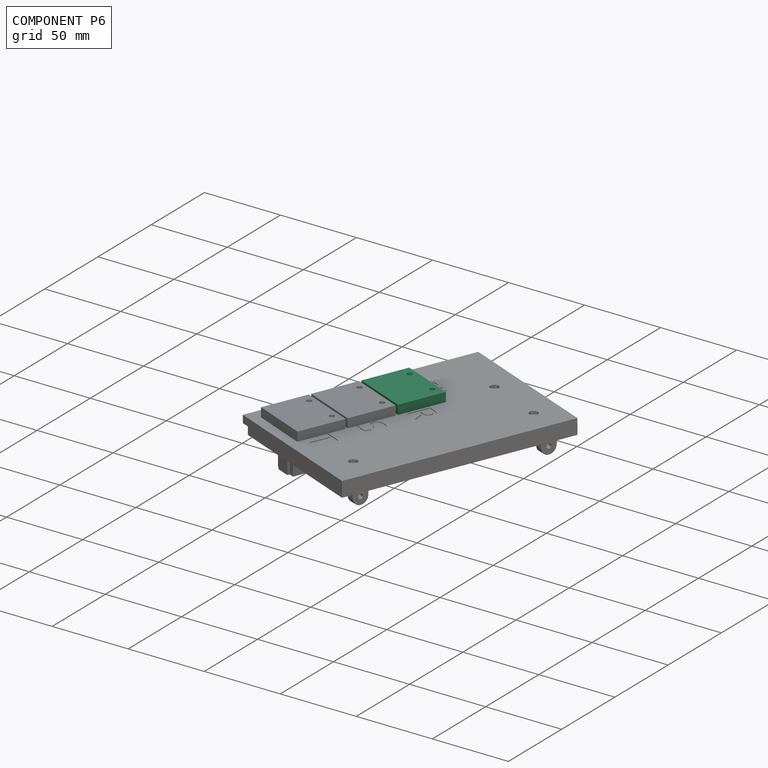
[diagram: component P6 — assembled]
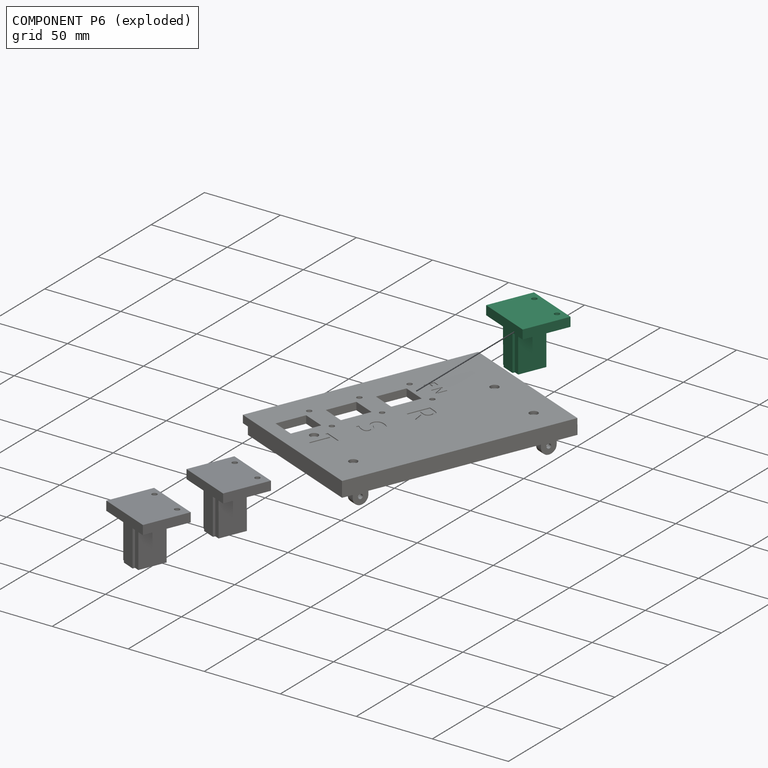
[diagram: component P6 — exploded]
COMPONENT P6 — same part as P2 (CADFS 00139065); its construction recipe is shown at P2.
Held by: PLANAR mate "Planar 3" to P1.
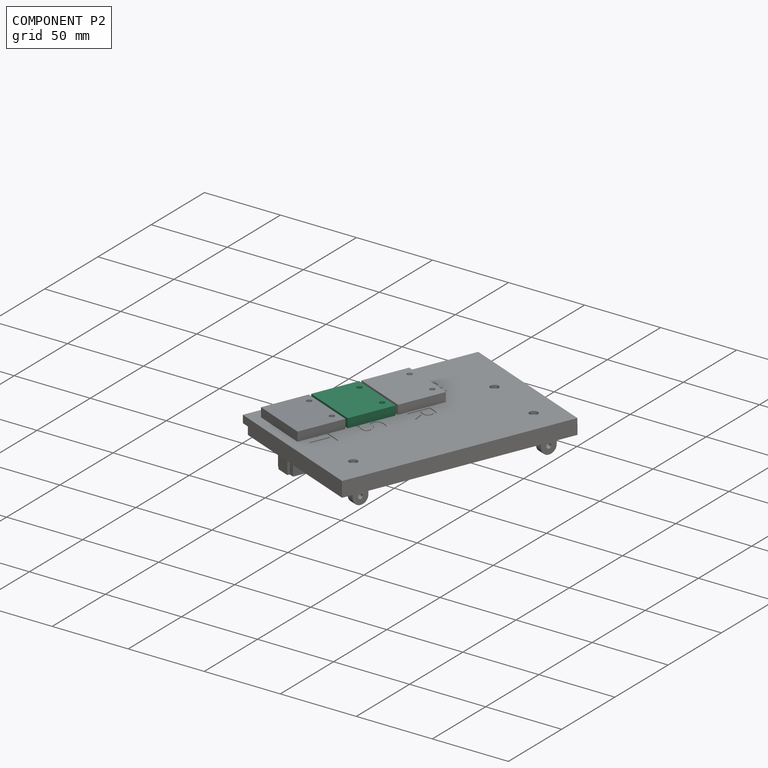
[diagram: component P2 — assembled]
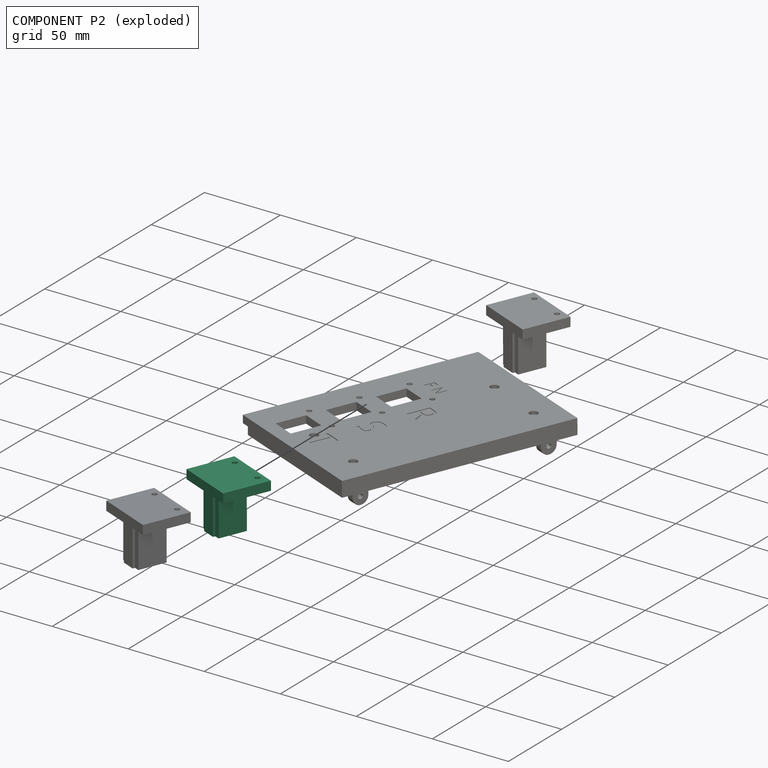
[diagram: component P2 — exploded]
COMPONENT P2 — recipe-attached (CADFS 00139065, mesh-verified: the recipe's output STEP matches this component's geometry to below the mesh-comparison resolution (tessellation chordal tolerance ~0.0863 mm)).
Held by: PLANAR mate "Planar 2" to P1.
Construction recipe (FeatureScript — the CAD program that rebuilds this solid; sketch coordinates are in the units given by the * unit suffixes, e.g. mm):

FeatureScript 1511;
import(path : "onshape/std/geometry.fs", version : "1511.0");
import(path : "onshape/std/common.fs", version : "1511.0");
const mm = millimeter;
const VERTEX = EntityType.VERTEX;
const EDGE = EntityType.EDGE;
const FACE = EntityType.FACE;
const BODY = EntityType.BODY;
function v(x, y){return vector(x, y);}
function OD(order){return orderDisambiguation(order);}
function OSD(set){return originalSetDisambiguation(set);}
function TD(topology){return topologyDisambiguation(topology);}
function TDD(query){return trueDependencyDisambiguation(query);}
function sQuery(a, b, c) {return sketchEntityQuery(a, b, c);}

annotation { "Feature Type Name" : "Feature", "Feature Type Description" : "" }
export const myFeature = defineFeature(function(context is Context, id is Id, definition is map)
    precondition{}
    {
        {
            var Q0;
            Q0=qCreatedBy(makeId("Top.planeOp"),FACE);
            var sketch = newSketch(context, id + "F0", { "sketchPlane" : qUnion([Q0])});
            skLineSegment(sketch, "E0.bottom", {"start": v(18.43, 15.25) * mm, "end": v(-18.43, 15.25) * mm});
            skLineSegment(sketch, "E0.top", {"start": v(18.43, -15.25) * mm, "end": v(-18.43, -15.25) * mm});
            skLineSegment(sketch, "E0.left", {"start": v(18.43, 15.25) * mm, "end": v(18.43, -15.25) * mm});
            skLineSegment(sketch, "E0.right", {"start": v(-18.43, 15.25) * mm, "end": v(-18.43, -15.25) * mm});
            skPoint(sketch, "E0.middle", {"position": v(0, 0) * mm});
            skSolve(sketch);
        }
        {
            var Q0;
            Q0 = qSketchRegion(id + "F0", true);
            extrude(context, id + "F1", {"entities" : qUnion([Q0]), "depth" : 6 * mm});
        }
        {
            var Q0;
            Q0=makeQuery(id+"F1.opExtrude","CAP_FACE",FACE,{"disambiguationData":[OSD([sQuery(id+"F0.wireOp",EDGE,"E0.bottom"),sQuery(id+"F0.wireOp",EDGE,"E0.top"),sQuery(id+"F0.wireOp",EDGE,"E0.left"),sQuery(id+"F0.wireOp",EDGE,"E0.right")])],"isStart":false});
            var sketch = newSketch(context, id + "F2", { "sketchPlane" : qUnion([Q0])});
            skCircle(sketch, "E1", {"center": v(-11.43, 11.05) * mm, "radius": 1.7 * mm});
            skCircle(sketch, "E2", {"center": v(11.43, 11.05) * mm, "radius": 1.7 * mm});
            skSolve(sketch);
        }
        {
            var Q0;
            Q0 = qSketchRegion(id + "F2", true);
            extrude(context, id + "F3", {"entities" : qUnion([Q0]), "operationType" : NewBodyOperationType.REMOVE, "oppositeDirection" : true, "depth" : 25 * mm});
        }
        {
            var Q0;
            Q0=makeQuery(id+"F1.opExtrude","CAP_FACE",FACE,{"disambiguationData":[OSD([sQuery(id+"F0.wireOp",EDGE,"E0.bottom"),sQuery(id+"F0.wireOp",EDGE,"E0.top"),sQuery(id+"F0.wireOp",EDGE,"E0.left"),sQuery(id+"F0.wireOp",EDGE,"E0.right")])],"isStart":false});
            var sketch = newSketch(context, id + "F4", { "sketchPlane" : qUnion([Q0])});
            skLineSegment(sketch, "E3.bottom", {"start": v(-7.6, -11.3) * mm, "end": v(7.61, -11.3) * mm});
            skLineSegment(sketch, "E3.top", {"start": v(-7.6, 6.7) * mm, "end": v(7.61, 6.7) * mm});
            skLineSegment(sketch, "E3.left", {"start": v(-7.6, -11.3) * mm, "end": v(-7.6, 6.7) * mm});
            skLineSegment(sketch, "E3.right", {"start": v(7.61, -11.3) * mm, "end": v(7.61, 6.7) * mm});
            skLineSegment(sketch, "E4.bottom", {"start": v(-4.26, -11.3) * mm, "end": v(4.65, -11.3) * mm});
            skLineSegment(sketch, "E4.top", {"start": v(-4.26, -12.8) * mm, "end": v(4.65, -12.8) * mm});
            skLineSegment(sketch, "E4.left", {"start": v(-4.26, -11.3) * mm, "end": v(-4.26, -12.8) * mm});
            skLineSegment(sketch, "E4.right", {"start": v(4.65, -11.3) * mm, "end": v(4.65, -12.8) * mm});
            skSolve(sketch);
        }
        {
            var Q0;
            Q0 = qSketchRegion(id + "F4", true);
            extrude(context, id + "F5", {"entities" : qUnion([Q0]), "operationType" : NewBodyOperationType.ADD, "depth" : 26 * mm});
        }
    });
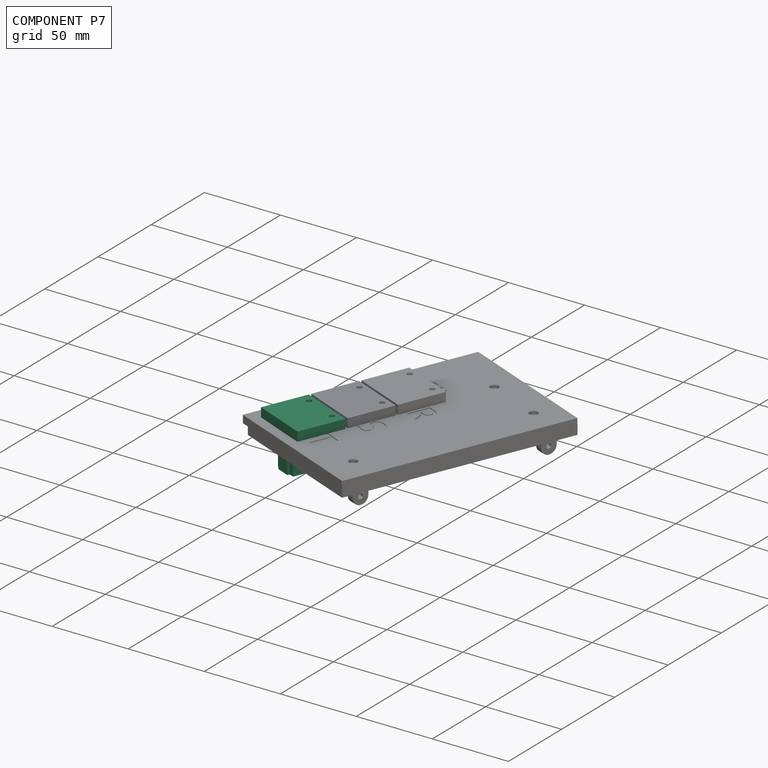
[diagram: component P7 — assembled]
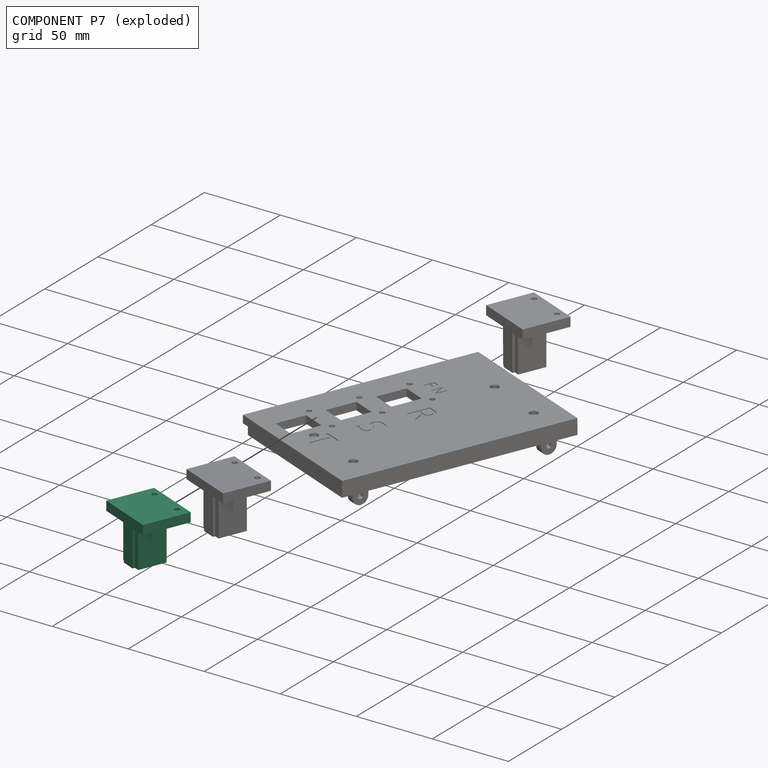
[diagram: component P7 — exploded]
COMPONENT P7 — same part as P2 (CADFS 00139065); its construction recipe is shown at P2.
Held by: PLANAR mate "Planar 1" to P1.
PROVENANCE & LICENSES
Assembly (occurrences, transforms, mates, per-part STEP geometry): AutoMate dataset, Zenodo record 7776208, CC0.
Construction recipes: CADFS (HuggingFace VladPyatov/CADFS, CC-BY-4.0, layered over the ABC dataset), FeatureScript reconstruction programs keyed by ABC model id.
Join: ABC meta listings map ABC model id -> Onshape documentId; within a shared document, parts are matched by geometric signature (bounding-box dims + volume at 0.1% relative tolerance, exact B-rep face/solid counts).
Verification: 5 of this assembly's 8 components carry a recipe attachment, and every attachment is mesh-verified: the CADFS STEP and the AutoMate member STEP were compared as meshes in their shared local frame (symmetric sampled-point-to-mesh distance); worst across the 5 attachments: below the mesh-comparison resolution (tessellation chordal tolerance ~0.272 mm) on a 181 mm part.
Renders: orthographic iso camera (az 35 / el 25); the floor grid conveys scale (grid pitch printed in each image; no ruler). In the exploded view each component is displaced by its stored offset vector: the offsets alone carry the explosion direction (mate normal/axis signs are not orientation cues and do not encode it), and separation distances are assigned per mate-chain, not proportionally to assembly-order depth.
